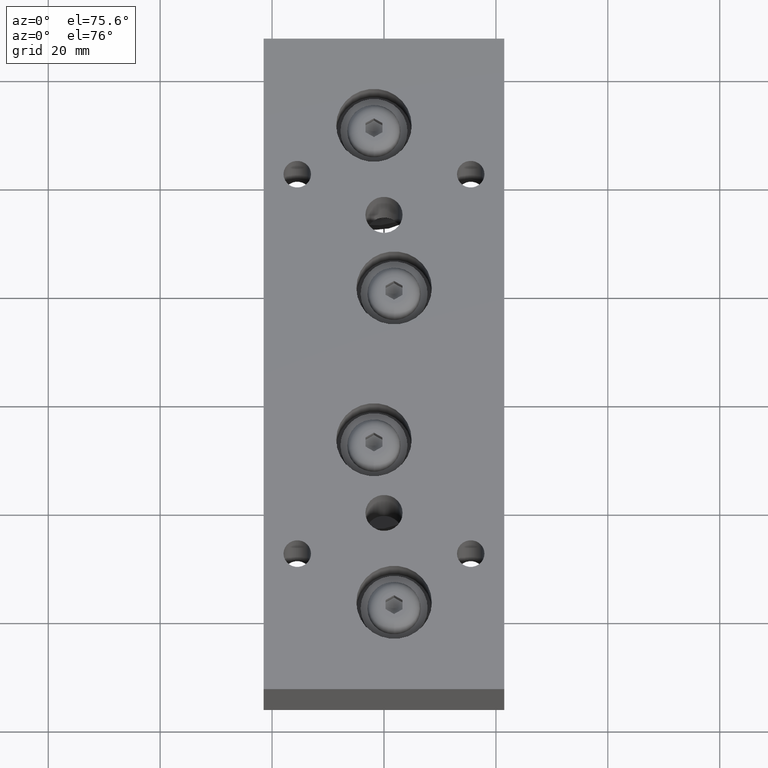
[diagram: clean part render]
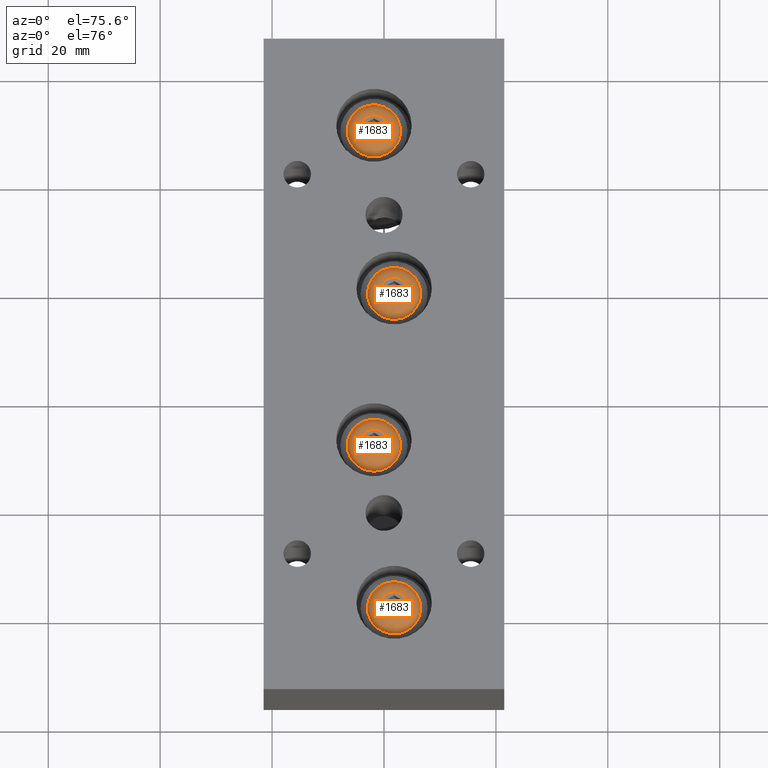
[diagram: same view with one multi-face feature highlighted, each face labeled with its STEP entity id]
A machine part, auxiliary view. The highlighted faces form ONE feature: a constant-radius fillet chain: 4 tangent blend faces with common blend radius 2.37 mm. The faces share edges in the B-rep.
Their STEP definitions:
[1] entity #1683 (Torus):
#89=TOROIDAL_SURFACE('',#2101,2.38,2.37);
#521=FACE_OUTER_BOUND('',#671,.T.);
#671=EDGE_LOOP('',(#1486,#1487,#1488,#1489,#1490));
#772=CIRCLE('',#2102,4.75);
#773=CIRCLE('',#2103,4.75);
#774=CIRCLE('',#2104,2.37);
#775=CIRCLE('',#2105,2.38);
#899=VERTEX_POINT('',#3095);
#900=VERTEX_POINT('',#3096);
#901=VERTEX_POINT('',#3099);
#1098=EDGE_CURVE('',#899,#900,#772,.T.);
#1099=EDGE_CURVE('',#900,#899,#773,.T.);
#1100=EDGE_CURVE('',#899,#901,#774,.T.);
#1101=EDGE_CURVE('',#901,#901,#775,.T.);
#1486=ORIENTED_EDGE('',*,*,#1098,.T.);
#1487=ORIENTED_EDGE('',*,*,#1099,.T.);
#1488=ORIENTED_EDGE('',*,*,#1100,.T.);
#1489=ORIENTED_EDGE('',*,*,#1101,.T.);
#1490=ORIENTED_EDGE('',*,*,#1100,.F.);
#1683=ADVANCED_FACE('',(#521),#89,.T.);
#2101=AXIS2_PLACEMENT_3D('',#3094,#2614,#2615);
#2102=AXIS2_PLACEMENT_3D('',#3097,#2616,#2617);
#2103=AXIS2_PLACEMENT_3D('',#3098,#2618,#2619);
#2104=AXIS2_PLACEMENT_3D('',#3100,#2620,#2621);
#2105=AXIS2_PLACEMENT_3D('',#3101,#2622,#2623);
#2614=DIRECTION('center_axis',(1.,1.18226200132698E-17,0.));
#2615=DIRECTION('ref_axis',(0.,0.,-1.));
#2616=DIRECTION('center_axis',(-1.,-1.18226200132698E-17,0.));
#2617=DIRECTION('ref_axis',(0.,-1.,1.22464679914735E-16));
#2618=DIRECTION('center_axis',(-1.,-1.18226200132698E-17,0.));
#2619=DIRECTION('ref_axis',(0.,-1.,1.22464679914735E-16));
#2620=DIRECTION('center_axis',(1.18226200132698E-17,-1.,-1.22464679914735E-16));
#2621=DIRECTION('ref_axis',(0.,-1.22464679914735E-16,1.));
#2622=DIRECTION('center_axis',(1.,1.18226200132698E-17,0.));
#2623=DIRECTION('ref_axis',(1.18226200132698E-17,-1.,1.22464679914735E-16));
#3094=CARTESIAN_POINT('Origin',(-0.379999999999994,-1.2271879573774E-16,
0.));
#3095=CARTESIAN_POINT('',(-0.379999999999994,-7.04426025332733E-16,4.75));
#3096=CARTESIAN_POINT('',(-0.379999999999994,-4.75,-5.81707229594993E-16));
#3097=CARTESIAN_POINT('Origin',(-0.379999999999994,-1.2271879573774E-16,
0.));
#3098=CARTESIAN_POINT('Origin',(-0.379999999999994,-1.2271879573774E-16,
0.));
#3099=CARTESIAN_POINT('',(-2.74999999999999,-4.4220434336626E-16,2.38));
#3100=CARTESIAN_POINT('Origin',(-0.379999999999994,-4.1418473393481E-16,
2.38));
#3101=CARTESIAN_POINT('Origin',(-2.74999999999999,-1.5073840516919E-16,
0.));
[2] entity #1683 (Torus):
#89=TOROIDAL_SURFACE('',#2101,2.38,2.37);
#521=FACE_OUTER_BOUND('',#671,.T.);
#671=EDGE_LOOP('',(#1486,#1487,#1488,#1489,#1490));
#772=CIRCLE('',#2102,4.75);
#773=CIRCLE('',#2103,4.75);
#774=CIRCLE('',#2104,2.37);
#775=CIRCLE('',#2105,2.38);
#899=VERTEX_POINT('',#3095);
#900=VERTEX_POINT('',#3096);
#901=VERTEX_POINT('',#3099);
#1098=EDGE_CURVE('',#899,#900,#772,.T.);
#1099=EDGE_CURVE('',#900,#899,#773,.T.);
#1100=EDGE_CURVE('',#899,#901,#774,.T.);
#1101=EDGE_CURVE('',#901,#901,#775,.T.);
#1486=ORIENTED_EDGE('',*,*,#1098,.T.);
#1487=ORIENTED_EDGE('',*,*,#1099,.T.);
#1488=ORIENTED_EDGE('',*,*,#1100,.T.);
#1489=ORIENTED_EDGE('',*,*,#1101,.T.);
#1490=ORIENTED_EDGE('',*,*,#1100,.F.);
#1683=ADVANCED_FACE('',(#521),#89,.T.);
#2101=AXIS2_PLACEMENT_3D('',#3094,#2614,#2615);
#2102=AXIS2_PLACEMENT_3D('',#3097,#2616,#2617);
#2103=AXIS2_PLACEMENT_3D('',#3098,#2618,#2619);
#2104=AXIS2_PLACEMENT_3D('',#3100,#2620,#2621);
#2105=AXIS2_PLACEMENT_3D('',#3101,#2622,#2623);
#2614=DIRECTION('center_axis',(1.,1.18226200132698E-17,0.));
#2615=DIRECTION('ref_axis',(0.,0.,-1.));
#2616=DIRECTION('center_axis',(-1.,-1.18226200132698E-17,0.));
#2617=DIRECTION('ref_axis',(0.,-1.,1.22464679914735E-16));
#2618=DIRECTION('center_axis',(-1.,-1.18226200132698E-17,0.));
#2619=DIRECTION('ref_axis',(0.,-1.,1.22464679914735E-16));
#2620=DIRECTION('center_axis',(1.18226200132698E-17,-1.,-1.22464679914735E-16));
#2621=DIRECTION('ref_axis',(0.,-1.22464679914735E-16,1.));
#2622=DIRECTION('center_axis',(1.,1.18226200132698E-17,0.));
#2623=DIRECTION('ref_axis',(1.18226200132698E-17,-1.,1.22464679914735E-16));
#3094=CARTESIAN_POINT('Origin',(-0.379999999999994,-1.2271879573774E-16,
0.));
#3095=CARTESIAN_POINT('',(-0.379999999999994,-7.04426025332733E-16,4.75));
#3096=CARTESIAN_POINT('',(-0.379999999999994,-4.75,-5.81707229594993E-16));
#3097=CARTESIAN_POINT('Origin',(-0.379999999999994,-1.2271879573774E-16,
0.));
#3098=CARTESIAN_POINT('Origin',(-0.379999999999994,-1.2271879573774E-16,
0.));
#3099=CARTESIAN_POINT('',(-2.74999999999999,-4.4220434336626E-16,2.38));
#3100=CARTESIAN_POINT('Origin',(-0.379999999999994,-4.1418473393481E-16,
2.38));
#3101=CARTESIAN_POINT('Origin',(-2.74999999999999,-1.5073840516919E-16,
0.));
[3] entity #1683 (Torus):
#89=TOROIDAL_SURFACE('',#2101,2.38,2.37);
#521=FACE_OUTER_BOUND('',#671,.T.);
#671=EDGE_LOOP('',(#1486,#1487,#1488,#1489,#1490));
#772=CIRCLE('',#2102,4.75);
#773=CIRCLE('',#2103,4.75);
#774=CIRCLE('',#2104,2.37);
#775=CIRCLE('',#2105,2.38);
#899=VERTEX_POINT('',#3095);
#900=VERTEX_POINT('',#3096);
#901=VERTEX_POINT('',#3099);
#1098=EDGE_CURVE('',#899,#900,#772,.T.);
#1099=EDGE_CURVE('',#900,#899,#773,.T.);
#1100=EDGE_CURVE('',#899,#901,#774,.T.);
#1101=EDGE_CURVE('',#901,#901,#775,.T.);
#1486=ORIENTED_EDGE('',*,*,#1098,.T.);
#1487=ORIENTED_EDGE('',*,*,#1099,.T.);
#1488=ORIENTED_EDGE('',*,*,#1100,.T.);
#1489=ORIENTED_EDGE('',*,*,#1101,.T.);
#1490=ORIENTED_EDGE('',*,*,#1100,.F.);
#1683=ADVANCED_FACE('',(#521),#89,.T.);
#2101=AXIS2_PLACEMENT_3D('',#3094,#2614,#2615);
#2102=AXIS2_PLACEMENT_3D('',#3097,#2616,#2617);
#2103=AXIS2_PLACEMENT_3D('',#3098,#2618,#2619);
#2104=AXIS2_PLACEMENT_3D('',#3100,#2620,#2621);
#2105=AXIS2_PLACEMENT_3D('',#3101,#2622,#2623);
#2614=DIRECTION('center_axis',(1.,1.18226200132698E-17,0.));
#2615=DIRECTION('ref_axis',(0.,0.,-1.));
#2616=DIRECTION('center_axis',(-1.,-1.18226200132698E-17,0.));
#2617=DIRECTION('ref_axis',(0.,-1.,1.22464679914735E-16));
#2618=DIRECTION('center_axis',(-1.,-1.18226200132698E-17,0.));
#2619=DIRECTION('ref_axis',(0.,-1.,1.22464679914735E-16));
#2620=DIRECTION('center_axis',(1.18226200132698E-17,-1.,-1.22464679914735E-16));
#2621=DIRECTION('ref_axis',(0.,-1.22464679914735E-16,1.));
#2622=DIRECTION('center_axis',(1.,1.18226200132698E-17,0.));
#2623=DIRECTION('ref_axis',(1.18226200132698E-17,-1.,1.22464679914735E-16));
#3094=CARTESIAN_POINT('Origin',(-0.379999999999994,-1.2271879573774E-16,
0.));
#3095=CARTESIAN_POINT('',(-0.379999999999994,-7.04426025332733E-16,4.75));
#3096=CARTESIAN_POINT('',(-0.379999999999994,-4.75,-5.81707229594993E-16));
#3097=CARTESIAN_POINT('Origin',(-0.379999999999994,-1.2271879573774E-16,
0.));
#3098=CARTESIAN_POINT('Origin',(-0.379999999999994,-1.2271879573774E-16,
0.));
#3099=CARTESIAN_POINT('',(-2.74999999999999,-4.4220434336626E-16,2.38));
#3100=CARTESIAN_POINT('Origin',(-0.379999999999994,-4.1418473393481E-16,
2.38));
#3101=CARTESIAN_POINT('Origin',(-2.74999999999999,-1.5073840516919E-16,
0.));
[4] entity #1683 (Torus):
#89=TOROIDAL_SURFACE('',#2101,2.38,2.37);
#521=FACE_OUTER_BOUND('',#671,.T.);
#671=EDGE_LOOP('',(#1486,#1487,#1488,#1489,#1490));
#772=CIRCLE('',#2102,4.75);
#773=CIRCLE('',#2103,4.75);
#774=CIRCLE('',#2104,2.37);
#775=CIRCLE('',#2105,2.38);
#899=VERTEX_POINT('',#3095);
#900=VERTEX_POINT('',#3096);
#901=VERTEX_POINT('',#3099);
#1098=EDGE_CURVE('',#899,#900,#772,.T.);
#1099=EDGE_CURVE('',#900,#899,#773,.T.);
#1100=EDGE_CURVE('',#899,#901,#774,.T.);
#1101=EDGE_CURVE('',#901,#901,#775,.T.);
#1486=ORIENTED_EDGE('',*,*,#1098,.T.);
#1487=ORIENTED_EDGE('',*,*,#1099,.T.);
#1488=ORIENTED_EDGE('',*,*,#1100,.T.);
#1489=ORIENTED_EDGE('',*,*,#1101,.T.);
#1490=ORIENTED_EDGE('',*,*,#1100,.F.);
#1683=ADVANCED_FACE('',(#521),#89,.T.);
#2101=AXIS2_PLACEMENT_3D('',#3094,#2614,#2615);
#2102=AXIS2_PLACEMENT_3D('',#3097,#2616,#2617);
#2103=AXIS2_PLACEMENT_3D('',#3098,#2618,#2619);
#2104=AXIS2_PLACEMENT_3D('',#3100,#2620,#2621);
#2105=AXIS2_PLACEMENT_3D('',#3101,#2622,#2623);
#2614=DIRECTION('center_axis',(1.,1.18226200132698E-17,0.));
#2615=DIRECTION('ref_axis',(0.,0.,-1.));
#2616=DIRECTION('center_axis',(-1.,-1.18226200132698E-17,0.));
#2617=DIRECTION('ref_axis',(0.,-1.,1.22464679914735E-16));
#2618=DIRECTION('center_axis',(-1.,-1.18226200132698E-17,0.));
#2619=DIRECTION('ref_axis',(0.,-1.,1.22464679914735E-16));
#2620=DIRECTION('center_axis',(1.18226200132698E-17,-1.,-1.22464679914735E-16));
#2621=DIRECTION('ref_axis',(0.,-1.22464679914735E-16,1.));
#2622=DIRECTION('center_axis',(1.,1.18226200132698E-17,0.));
#2623=DIRECTION('ref_axis',(1.18226200132698E-17,-1.,1.22464679914735E-16));
#3094=CARTESIAN_POINT('Origin',(-0.379999999999994,-1.2271879573774E-16,
0.));
#3095=CARTESIAN_POINT('',(-0.379999999999994,-7.04426025332733E-16,4.75));
#3096=CARTESIAN_POINT('',(-0.379999999999994,-4.75,-5.81707229594993E-16));
#3097=CARTESIAN_POINT('Origin',(-0.379999999999994,-1.2271879573774E-16,
0.));
#3098=CARTESIAN_POINT('Origin',(-0.379999999999994,-1.2271879573774E-16,
0.));
#3099=CARTESIAN_POINT('',(-2.74999999999999,-4.4220434336626E-16,2.38));
#3100=CARTESIAN_POINT('Origin',(-0.379999999999994,-4.1418473393481E-16,
2.38));
#3101=CARTESIAN_POINT('Origin',(-2.74999999999999,-1.5073840516919E-16,
0.));